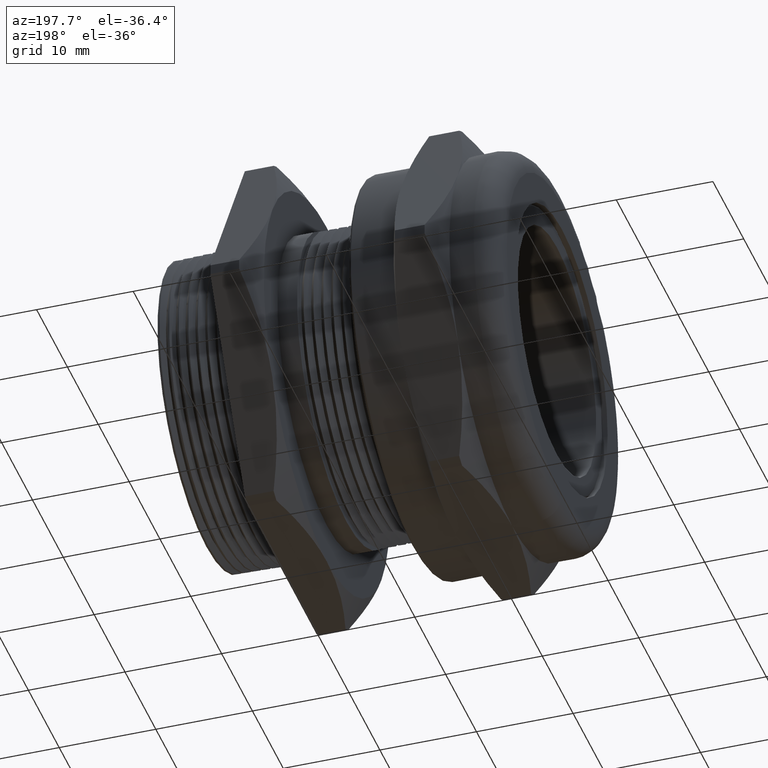
[diagram: clean part render]
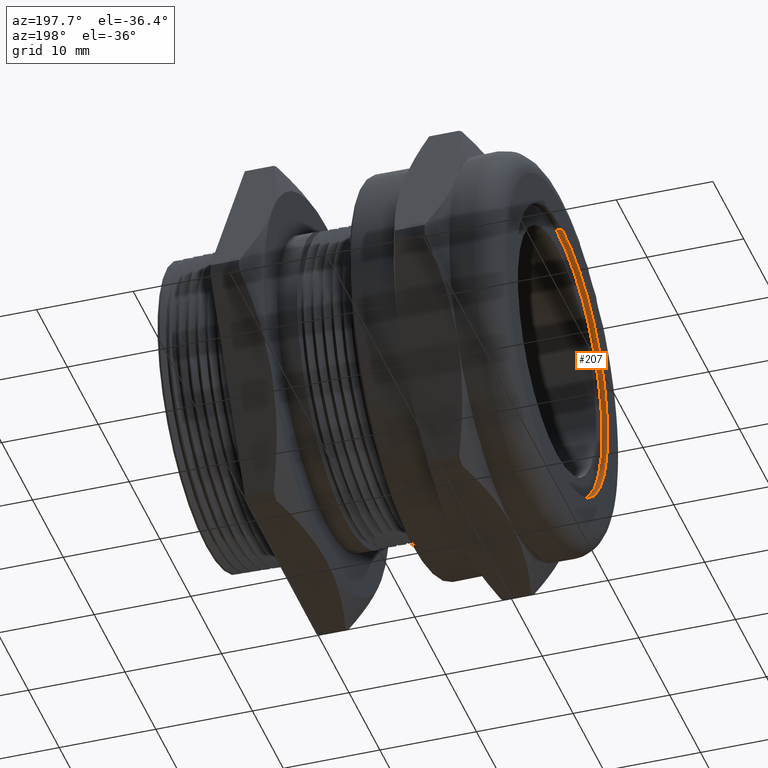
[diagram: same view with one face highlighted and labeled with its STEP entity id]
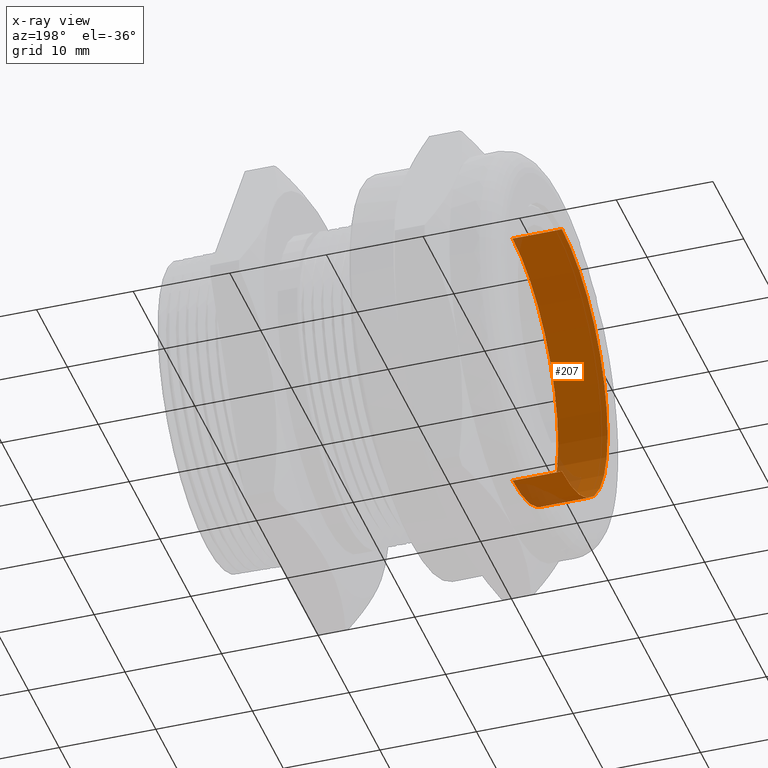
[diagram: x-ray of the same camera — body ghosted, the highlighted face saturated]
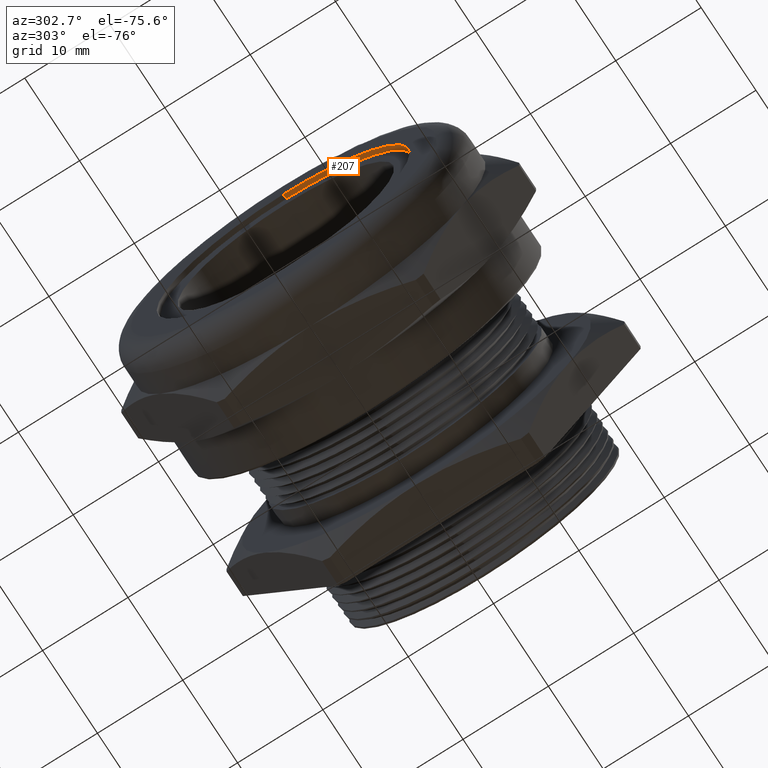
[diagram: same view with one face highlighted and labeled with its STEP entity id]
A machine part, auxiliary view. The second image highlights one B-rep face of the part: STEP entity #207.
The next image is the same camera in x-ray: the body ghosted, the highlighted face saturated — about 7% of this face is hidden behind the body in this view.
A second angle (auxiliary view) of the same face is appended — the face is thin or edge-on in the first view.
In plain terms, the highlighted cylindrical surface (partial cylindrical patch) has radius 14.8241 mm, axis along (-1, 0, 0).
Its self-contained STEP definition (entity closure, byte-faithful):
#203 = ORIENTED_EDGE ( 'NONE', *, *, #209, .F. ) ;
#205 = EDGE_LOOP ( 'NONE', ( #203, #277, #306, #303 ) ) ;
#207 = ADVANCED_FACE ( 'NONE', ( #1738 ), #1736, .F. ) ;
#209 = EDGE_CURVE ( 'NONE', #211, #548, #1794, .T. ) ;
#211 = VERTEX_POINT ( 'NONE', #1790 ) ;
#270 = VERTEX_POINT ( 'NONE', #1881 ) ;
#277 = ORIENTED_EDGE ( 'NONE', *, *, #307, .T. ) ;
#299 = VERTEX_POINT ( 'NONE', #1970 ) ;
#300 = EDGE_CURVE ( 'NONE', #270, #299, #1968, .T. ) ;
#302 = EDGE_CURVE ( 'NONE', #548, #299, #1960, .T. ) ;
#303 = ORIENTED_EDGE ( 'NONE', *, *, #302, .F. ) ;
#306 = ORIENTED_EDGE ( 'NONE', *, *, #300, .T. ) ;
#307 = EDGE_CURVE ( 'NONE', #211, #270, #1946, .T. ) ;
#548 = VERTEX_POINT ( 'NONE', #2456 ) ;
#1732 = CARTESIAN_POINT ( 'NONE',  ( -0.5235000000000000800, 0.0000000000000000000, 0.0000000000000000000 ) ) ;
#1733 = DIRECTION ( 'NONE',  ( 0.0000000000000000000, 0.0000000000000000000, 1.000000000000000000 ) ) ;
#1734 = DIRECTION ( 'NONE',  ( -1.000000000000000000, 0.0000000000000000000, 0.0000000000000000000 ) ) ;
#1735 = AXIS2_PLACEMENT_3D ( 'NONE', #1737, #1734, #1733 ) ;
#1736 = CYLINDRICAL_SURFACE ( 'NONE', #1735, 0.5836249999999999500 ) ;
#1737 = CARTESIAN_POINT ( 'NONE',  ( -2.719493435091831800, 0.0000000000000000000, 0.0000000000000000000 ) ) ;
#1738 = FACE_OUTER_BOUND ( 'NONE', #205, .T. ) ;
#1790 = CARTESIAN_POINT ( 'NONE',  ( -0.5235000000000000800, 7.147344881523739300E-017, -0.5836249999999999500 ) ) ;
#1791 = DIRECTION ( 'NONE',  ( 0.0000000000000000000, 0.0000000000000000000, 1.000000000000000000 ) ) ;
#1792 = DIRECTION ( 'NONE',  ( -1.000000000000000000, 0.0000000000000000000, 0.0000000000000000000 ) ) ;
#1793 = AXIS2_PLACEMENT_3D ( 'NONE', #1732, #1792, #1791 ) ;
#1794 = CIRCLE ( 'NONE', #1793, 0.5836249999999999500 ) ;
#1881 = CARTESIAN_POINT ( 'NONE',  ( -0.7250000000000000900, 7.147344881523741700E-017, -0.5836250000000001700 ) ) ;
#1943 = DIRECTION ( 'NONE',  ( -1.000000000000000000, 0.0000000000000000000, 0.0000000000000000000 ) ) ;
#1944 = VECTOR ( 'NONE', #1943, 39.37007874015748100 ) ;
#1945 = CARTESIAN_POINT ( 'NONE',  ( -2.719493435091831800, 7.147344881523739300E-017, -0.5836249999999999500 ) ) ;
#1946 = LINE ( 'NONE', #1945, #1944 ) ;
#1957 = DIRECTION ( 'NONE',  ( -1.000000000000000000, 0.0000000000000000000, 0.0000000000000000000 ) ) ;
#1958 = VECTOR ( 'NONE', #1957, 39.37007874015748100 ) ;
#1959 = CARTESIAN_POINT ( 'NONE',  ( -2.719493435091831800, 0.0000000000000000000, 0.5836249999999999500 ) ) ;
#1960 = LINE ( 'NONE', #1959, #1958 ) ;
#1964 = DIRECTION ( 'NONE',  ( 0.0000000000000000000, 0.0000000000000000000, 1.000000000000000000 ) ) ;
#1965 = DIRECTION ( 'NONE',  ( -1.000000000000000000, 0.0000000000000000000, 0.0000000000000000000 ) ) ;
#1966 = CARTESIAN_POINT ( 'NONE',  ( -0.7250000000000000900, 0.0000000000000000000, 0.0000000000000000000 ) ) ;
#1967 = AXIS2_PLACEMENT_3D ( 'NONE', #1966, #1965, #1964 ) ;
#1968 = CIRCLE ( 'NONE', #1967, 0.5836250000000000600 ) ;
#1970 = CARTESIAN_POINT ( 'NONE',  ( -0.7250000000000000900, 0.0000000000000000000, 0.5836250000000000600 ) ) ;
#2456 = CARTESIAN_POINT ( 'NONE',  ( -0.5235000000000000800, 0.0000000000000000000, 0.5836249999999999500 ) ) ;